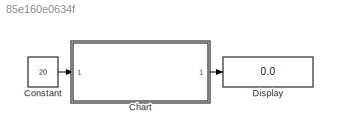
MODEL slx_85e160e0634f
KIND model
CONFIG AbsTol = auto
CONFIG EnableMultiTasking = off
CONFIG FixedStep = 0.5
CONFIG MaxStep = auto
CONFIG MinStep = auto
CONFIG RelTol = 1e-3
CONFIG SampleTimeConstraint = Unconstrained
CONFIG SolverName = FixedStepAuto
CONFIG StartTime = 0.0
CONFIG StopTime = 10.0
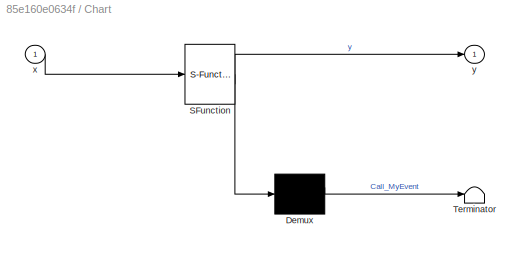
BLOCK [SubSystem] Chart
  ErrorFcn = Stateflow.Translate.translate
  PermitHierarchicalResolution = ExplicitOnly
  SFBlockType = Chart
  TreatAsAtomicUnit = on
BLOCK [Demux] Chart/ Demux 
  Outputs = 1
BLOCK [S-Function] Chart/ SFunction 
  EnableBusSupport = on
  FunctionName = sf_sfun
  PortCounts = [1 2]
  SFcnIsStateOwnerBlock = off
  SFunctionDeploymentMode = off
  Tag = Stateflow S-Function 3
BLOCK [Terminator] Chart/ Terminator 
BLOCK [Inport] Chart/x
BLOCK [Outport] Chart/y
BLOCK [Constant] Constant
  Value = 20
BLOCK [Display] Display
  Decimation = 1
LINE Chart:1 -> Display:1
LINE Constant:1 -> Chart:1
CHART Chart states=6 transitions=9
  STATE_LABEL '/*if condition */'
  STATE_LABEL '/*if action*/'
  STATE_LABEL '/*elif condition */'
  STATE_LABEL '/*if action*/'
  STATE_LABEL '/*else action */'
  STATE_LABEL '/*terminate point */\n'
CHART  states=0 transitions=0
